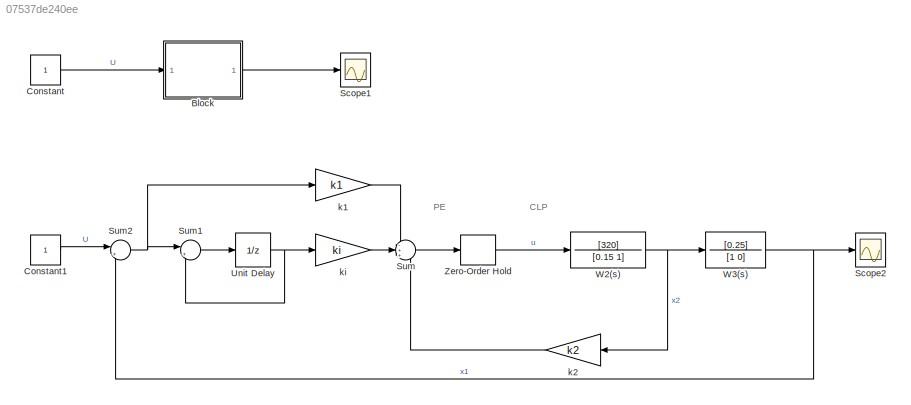
MODEL slx_07537de240ee
KIND model
CONFIG AbsTol = auto
CONFIG EnableMultiTasking = off
CONFIG FixedStep = auto
CONFIG MaxStep = 1e-5
CONFIG MinStep = auto
CONFIG RelTol = 1e-6
CONFIG SampleTimeConstraint = Unconstrained
CONFIG SolverName = VariableStepAuto
CONFIG StartTime = 0.0
CONFIG StopTime = 0.11
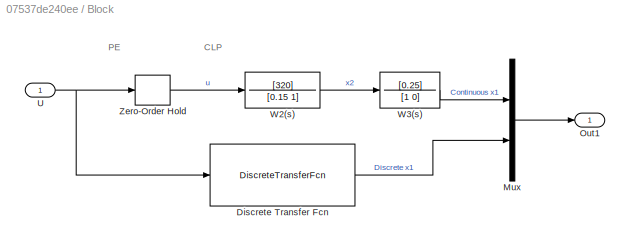
BLOCK [SubSystem] Block
BLOCK [DiscreteTransferFcn] Block/Discrete Transfer Fcn
  CloseFcn = dspblkCoreblockFVToolHelper(gcbh,'close');
  CopyFcn = dspblkCoreblockFVToolHelper(gcbh,'copy');
  DeleteFcn = dspblkCoreblockFVToolHelper(gcbh,'close');
  Denominator = [1 -1.9802 0.9802]
  InputPortMap = u0
  LoadFcn = dspblkCoreblockFVToolHelper(gcbh,'load');
  ModelCloseFcn = dspblkCoreblockFVToolHelper(gcbh,'close');
  Numerator = [0 0.0024 0.0024]
  PostSaveFcn = dspblkCoreblockFVToolHelper(gcbh,'postsave');
  PreSaveFcn = dspblkCoreblockFVToolHelper(gcbh,'presave');
BLOCK [Mux] Block/Mux
  DisplayOption = bar
  Inputs = 2
BLOCK [Outport] Block/Out1
BLOCK [Inport] Block/U
BLOCK [TransferFcn] Block/W2(s)
  Denominator = [0.15 1]
  Numerator = [320]
BLOCK [TransferFcn] Block/W3(s)
  Denominator = [1 0]
  Numerator = [0.25]
BLOCK [ZeroOrderHold] Block/Zero-Order Hold
  SampleTime = T
BLOCK [Constant] Constant
BLOCK [Constant] Constant1
BLOCK [Scope] Scope1
  ActiveDisplayYMaximum = 1
  ActiveDisplayYMinimum = -1
  DataLoggingVariableName = ScopeData1
  Floating = off
  GraphicalSettings = {"Style":{"BackgroundColor":[1,1,1],"AxesColor":[1,1,1],"LabelsColor":[0,0,0],"PreserveColors":false,"Visible":[true,true],"LineStyle":["-",":"],"LineWidth":[1.5,2],"BarWidth":[0.9,0.9],"LineColor":[[1,0,0],[0,0,1]],"LineFaceAlpha":[1,1],"LineEdgeAlpha":[1,1],"Marker":["none","none"],"FontSize":8.5,"LineTrueColor":[[1,0,0],[0,0,1]],"ChannelNames":"","DefaultLegendLabel":["Continuous x1","Discrete ...<+1877ch>
  MultipleDisplayCache = [{"MaxYLimMag":1,"MaxYLimReal":1,"MinYLimMag":0,"MinYLimReal":-1,"PlotAsMagnitudePhase":false,"ShowGrid":true,"ShowLegend":true,"Title":"%<SignalLabel>","YLabel":""}]
  NumInputPorts = 1
  ScopeFrameLocation = window
  ShowLegend = on
  WasSavedAsWebScope = on
  WindowPosition = [581.000000,162.000000,560.000000,420.000000,]
BLOCK [Scope] Scope2
  ActiveDisplayYMaximum = 1.4414681645417289
  ActiveDisplayYMinimum = -0.16016312939352539
  Floating = off
  GraphicalSettings = {"Style":{"BackgroundColor":[1,1,1],"AxesColor":[1,1,1],"LabelsColor":[0,0,0],"PreserveColors":false,"Visible":[true],"LineStyle":["-"],"LineWidth":[1.5],"BarWidth":[0.9],"LineColor":[[1,0,0]],"LineFaceAlpha":[1],"LineEdgeAlpha":[1],"Marker":["none"],"FontSize":8.5,"LineTrueColor":[[1,0,0]],"ChannelNames":"","DefaultLegendLabel":["x1"],"PlotType":"Auto","NumLinesForDisplays":[1],"OffsetView":true,...<+2194ch>
  MultipleDisplayCache = [{"MaxYLimMag":1.4414681645417289,"MaxYLimReal":1.4414681645417289,"MinYLimMag":0,"MinYLimReal":-0.16016312939352539,"PlotAsMagnitudePhase":false,"ShowGrid":true,"ShowLegend":true,"Title":"%<SignalLabel>","YLabel":""}]
  NumInputPorts = 1
  ScopeFrameLocation = window
  ShowLegend = on
  WasSavedAsWebScope = on
  WindowPosition = [531.000000,203.000000,685.000000,486.000000,]
BLOCK [Sum] Sum
  Inputs = -++
BLOCK [Sum] Sum1
  Inputs = |++
BLOCK [Sum] Sum2
  Inputs = |+-
BLOCK [UnitDelay] Unit Delay
  HasFrameUpgradeWarning = on
  SampleTime = -1
BLOCK [TransferFcn] W2(s)
  Denominator = [0.15 1]
  Numerator = [320]
BLOCK [TransferFcn] W3(s)
  Denominator = [1 0]
  Numerator = [0.25]
BLOCK [ZeroOrderHold] Zero-Order Hold
  SampleTime = T
BLOCK [Gain] k1
  Gain = k1
BLOCK [Gain] k2
  Gain = k2
  NameLocation = top
BLOCK [Gain] ki
  Gain = ki
ANNOTATION (root): CLP
ANNOTATION (root): PE
ANNOTATION Block: CLP
ANNOTATION Block: PE
LINE Block/Discrete Transfer Fcn:1 -> Block/Mux:2
LINE Block/Mux:1 -> Block/Out1:1
NET Block/U:1 -> Block/Discrete Transfer Fcn:1, Block/Zero-Order Hold:1
LINE Block/W2(s):1 -> Block/W3(s):1
LINE Block/W3(s):1 -> Block/Mux:1
LINE Block/Zero-Order Hold:1 -> Block/W2(s):1
LINE Block:1 -> Scope1:1
LINE Constant1:1 -> Sum2:1
LINE Constant:1 -> Block:1
LINE Sum1:1 -> Unit Delay:1
NET Sum2:1 -> Sum1:1, k1:1
LINE Sum:1 -> Zero-Order Hold:1
NET Unit Delay:1 -> Sum1:2, ki:1
NET W2(s):1 -> W3(s):1, k2:1
NET W3(s):1 -> Scope2:1, Sum2:2
LINE Zero-Order Hold:1 -> W2(s):1
LINE k1:1 -> Sum:1
LINE k2:1 -> Sum:3
LINE ki:1 -> Sum:2
note: NET lines group one-source signal fan-out (src -> all destinations, sorted); 1:1 wires keep LINE
